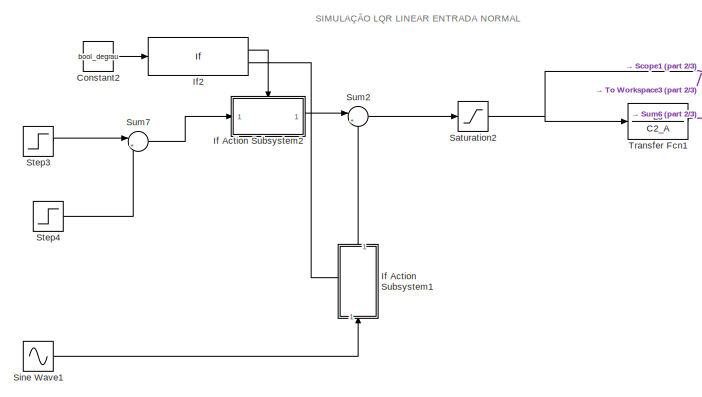
[diagram: root canvas - part 1/3, top left region]
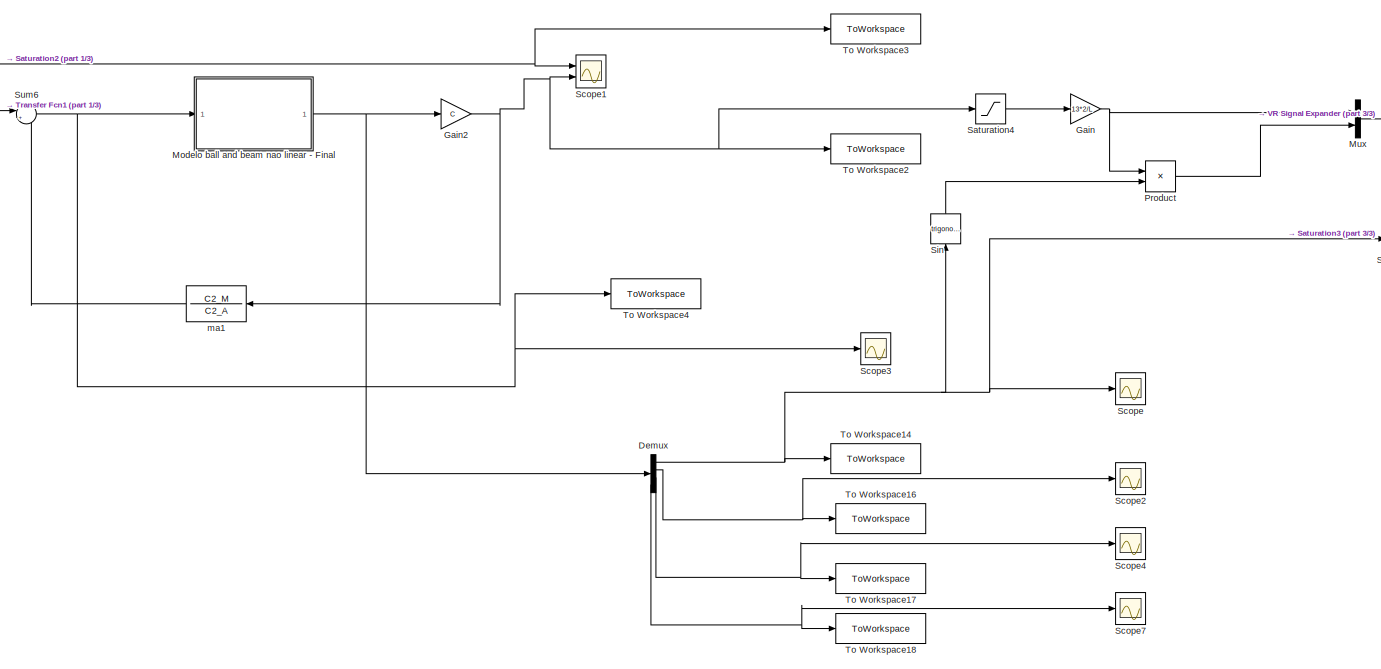
[diagram: root canvas - part 2/3, center side, full height]
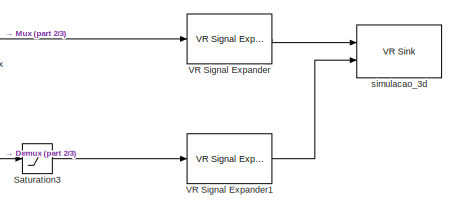
[diagram: root canvas - part 3/3, top right region]
MODEL slx_88c4b40026f5
KIND model
CONFIG AbsTol = auto
CONFIG EnableMultiTasking = off
CONFIG FixedStep = auto
CONFIG MaxStep = auto
CONFIG MinStep = auto
CONFIG RelTol = 1e-3
CONFIG SampleTimeConstraint = Unconstrained
CONFIG SolverName = VariableStepAuto
CONFIG StartTime = 0.0
CONFIG StopTime = 100
BLOCK [Constant] Constant2
  Value = bool_degrau
BLOCK [Demux] Demux
  Ports = [1, 4]
BLOCK [Gain] Gain
  Gain = 13*2/L
BLOCK [Gain] Gain2
  Gain = C
  Multiplication = Matrix(K*u)
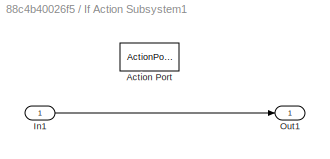
BLOCK [SubSystem] If Action Subsystem1
  NameLocation = right
  Ports = [1, 1, 0, 0, 0, 0, 0, 1]
  RequestExecContextInheritance = off
  TreatAsAtomicUnit = on
BLOCK [ActionPort] If Action Subsystem1/Action Port
  ActionPortLabel = else
BLOCK [Inport] If Action Subsystem1/In1
BLOCK [Outport] If Action Subsystem1/Out1
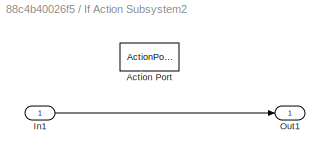
BLOCK [SubSystem] If Action Subsystem2
  Ports = [1, 1, 0, 0, 0, 0, 0, 1]
  RequestExecContextInheritance = off
  TreatAsAtomicUnit = on
BLOCK [ActionPort] If Action Subsystem2/Action Port
  ActionPortLabel = if(u1 == 1)
BLOCK [Inport] If Action Subsystem2/In1
BLOCK [Outport] If Action Subsystem2/Out1
BLOCK [If] If2
  IfExpression = u1 == 1
  Ports = [1, 2]
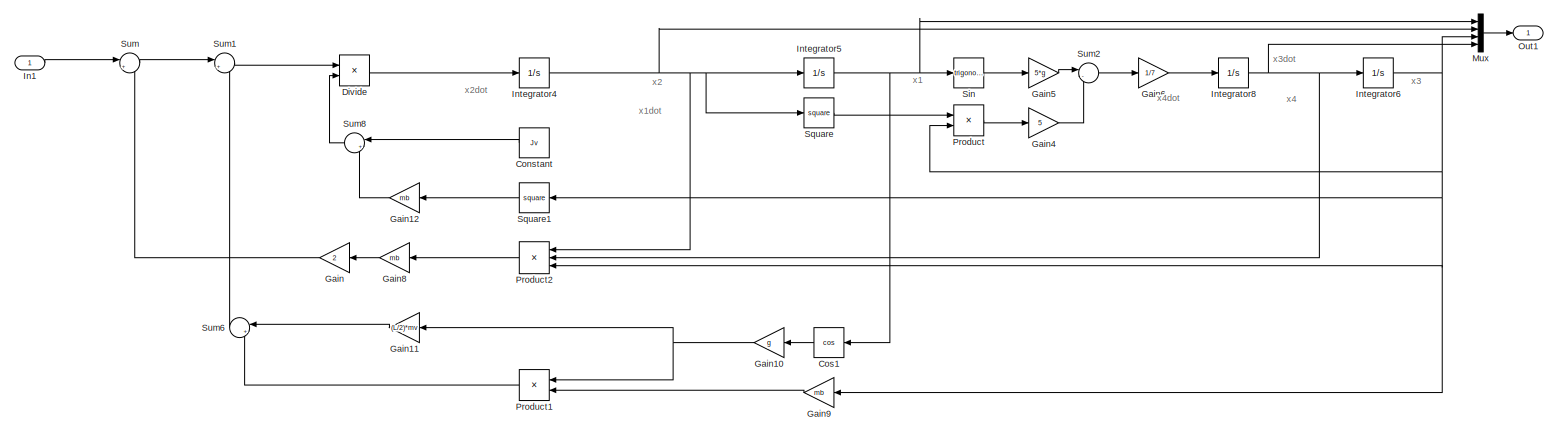
[diagram: Modelo ball and beam nao linear - Final - part 1/1, most of the canvas]
BLOCK [SubSystem] Modelo ball and beam nao linear - Final
  Ports = [1, 1]
  RequestExecContextInheritance = off
BLOCK [Constant] Modelo ball and beam nao linear - Final/Constant
  NameLocation = top
  Value = Jv
BLOCK [Trigonometry] Modelo ball and beam nao linear - Final/Cos1
  NameLocation = top
  Operator = cos
  Ports = [1, 1]
BLOCK [Product] Modelo ball and beam nao linear - Final/Divide
  Inputs = */
  Ports = [2, 1]
BLOCK [Gain] Modelo ball and beam nao linear - Final/Gain
  Gain = 2
  NameLocation = top
BLOCK [Gain] Modelo ball and beam nao linear - Final/Gain10
  Gain = g
  NameLocation = top
BLOCK [Gain] Modelo ball and beam nao linear - Final/Gain11
  Gain = (L/2)*mv
  NameLocation = top
BLOCK [Gain] Modelo ball and beam nao linear - Final/Gain12
  Gain = mb
  NameLocation = top
BLOCK [Gain] Modelo ball and beam nao linear - Final/Gain4
  Gain = 5
BLOCK [Gain] Modelo ball and beam nao linear - Final/Gain5
  Gain = 5*g
BLOCK [Gain] Modelo ball and beam nao linear - Final/Gain6
  Gain = 1/7
BLOCK [Gain] Modelo ball and beam nao linear - Final/Gain8
  Gain = mb
  NameLocation = top
BLOCK [Gain] Modelo ball and beam nao linear - Final/Gain9
  Gain = mb
  NameLocation = top
BLOCK [Inport] Modelo ball and beam nao linear - Final/In1
BLOCK [Integrator] Modelo ball and beam nao linear - Final/Integrator4
  Ports = [1, 1]
BLOCK [Integrator] Modelo ball and beam nao linear - Final/Integrator5
  Ports = [1, 1]
BLOCK [Integrator] Modelo ball and beam nao linear - Final/Integrator6
  Ports = [1, 1]
BLOCK [Integrator] Modelo ball and beam nao linear - Final/Integrator8
  Ports = [1, 1]
BLOCK [Mux] Modelo ball and beam nao linear - Final/Mux
  DisplayOption = bar
  Ports = [4, 1]
BLOCK [Outport] Modelo ball and beam nao linear - Final/Out1
BLOCK [Product] Modelo ball and beam nao linear - Final/Product
  Ports = [2, 1]
BLOCK [Product] Modelo ball and beam nao linear - Final/Product1
  NameLocation = top
  Ports = [2, 1]
BLOCK [Product] Modelo ball and beam nao linear - Final/Product2
  Inputs = 3
  NameLocation = top
  Ports = [3, 1]
BLOCK [Trigonometry] Modelo ball and beam nao linear - Final/Sin
  Ports = [1, 1]
BLOCK [Math] Modelo ball and beam nao linear - Final/Square
  Operator = square
  Ports = [1, 1]
BLOCK [Math] Modelo ball and beam nao linear - Final/Square1
  NameLocation = top
  Operator = square
  Ports = [1, 1]
BLOCK [Sum] Modelo ball and beam nao linear - Final/Sum
  Inputs = |+-
  Ports = [2, 1]
BLOCK [Sum] Modelo ball and beam nao linear - Final/Sum1
  Inputs = |+-
  Ports = [2, 1]
BLOCK [Sum] Modelo ball and beam nao linear - Final/Sum2
  Inputs = |-+
  NameLocation = top
  Ports = [2, 1]
BLOCK [Sum] Modelo ball and beam nao linear - Final/Sum6
  Inputs = |++
  NameLocation = top
  Ports = [2, 1]
BLOCK [Sum] Modelo ball and beam nao linear - Final/Sum8
  Inputs = |++
  NameLocation = top
  Ports = [2, 1]
BLOCK [Mux] Mux
  DisplayOption = bar
  Inputs = 2
  Ports = [2, 1]
BLOCK [Product] Product
  Ports = [2, 1]
BLOCK [Saturate] Saturation2
  LowerLimit = -L/2
  UpperLimit = L/2
BLOCK [Saturate] Saturation3
  LowerLimit = -0.1
  UpperLimit = 0.1
BLOCK [Saturate] Saturation4
  LowerLimit = 0
  UpperLimit = L/2
BLOCK [Scope] Scope
  Floating = off
  NumInputPorts = 1
  Ports = [1]
  ScopeSpecificationString = Simulink.scopes.TimeScopeBlockCfg('CurrentConfiguration', extmgr.ConfigurationSet(extmgr.Configuration('Core','General UI',true),extmgr.Configuration('Core','Source UI',true),extmgr.Configuration('Sources','WiredSimulink',true,'DataLoggingVariableName','ScopeData1'),extmgr.Configuration('Visuals','Time Domain',true,'SerializedDisplays',{struct('MinYLimReal','-7.97498','MaxYLimReal','11.73595','YLa...<+1399ch>
BLOCK [Scope] Scope1
  Floating = off
  NumInputPorts = 2
  Ports = [2]
  ScopeSpecificationString = Simulink.scopes.TimeScopeBlockCfg('CurrentConfiguration', extmgr.ConfigurationSet(extmgr.Configuration('Core','General UI',true,'FigureColor',[1 1 1]),extmgr.Configuration('Core','Source UI',true),extmgr.Configuration('Sources','WiredSimulink',true,'DataLoggingVariableName','ScopeData2'),extmgr.Configuration('Visuals','Time Domain',true,'SerializedDisplays',{struct('MinYLimReal','-9336579.2853','M...<+1861ch>
BLOCK [Scope] Scope2
  Floating = off
  NumInputPorts = 1
  Ports = [1]
  ScopeSpecificationString = Simulink.scopes.TimeScopeBlockCfg('CurrentConfiguration', extmgr.ConfigurationSet(extmgr.Configuration('Core','General UI',true),extmgr.Configuration('Core','Source UI',true),extmgr.Configuration('Sources','WiredSimulink',true,'DataLoggingVariableName','ScopeData3'),extmgr.Configuration('Visuals','Time Domain',true,'SerializedDisplays',{struct('MinYLimReal','-343.37819','MaxYLimReal','357.58827','...<+1380ch>
BLOCK [Scope] Scope3
  Floating = off
  NumInputPorts = 1
  Ports = [1]
  ScopeSpecificationString = Simulink.scopes.TimeScopeBlockCfg('CurrentConfiguration', extmgr.ConfigurationSet(extmgr.Configuration('Core','General UI',true),extmgr.Configuration('Core','Source UI',true),extmgr.Configuration('Sources','WiredSimulink',true,'DataLoggingVariableName','ScopeData6'),extmgr.Configuration('Visuals','Time Domain',true,'SerializedDisplays',{struct('MinYLimReal','-2.72608','MaxYLimReal','2.77862','YLab...<+1392ch>
BLOCK [Scope] Scope4
  Floating = off
  NumInputPorts = 1
  Ports = [1]
  ScopeSpecificationString = Simulink.scopes.TimeScopeBlockCfg('CurrentConfiguration', extmgr.ConfigurationSet(extmgr.Configuration('Core','General UI',true),extmgr.Configuration('Core','Source UI',true),extmgr.Configuration('Sources','WiredSimulink',true,'DataLoggingVariableName','ScopeData7'),extmgr.Configuration('Visuals','Time Domain',true,'SerializedDisplays',{struct('MinYLimReal','-0.27571','MaxYLimReal','0.27153','YLab...<+1366ch>
BLOCK [Scope] Scope7
  Floating = off
  NumInputPorts = 1
  Ports = [1]
  ScopeSpecificationString = Simulink.scopes.TimeScopeBlockCfg('CurrentConfiguration', extmgr.ConfigurationSet(extmgr.Configuration('Core','General UI',true),extmgr.Configuration('Core','Source UI',true),extmgr.Configuration('Sources','WiredSimulink',true),extmgr.Configuration('Visuals','Time Domain',true,'SerializedDisplays',{struct('MinYLimReal','-4.60207','MaxYLimReal','2.66412','YLabelReal','','MinYLimMag','0.00000','MaxY...<+1327ch>
BLOCK [Trigonometry] Sin
  NameLocation = right
  Ports = [1, 1]
BLOCK [Sin] Sine Wave1
  Amplitude = amplitude_entrada
  Frequency = 0.1
  Ports = [0, 1]
  SampleTime = 0
BLOCK [Step] Step3
  After = amplitude_entrada
  SampleTime = 0
BLOCK [Step] Step4
  After = -2*amplitude_entrada
  SampleTime = 0
  Time = 100
BLOCK [Sum] Sum2
  Inputs = |++
  Ports = [2, 1]
BLOCK [Sum] Sum6
  Inputs = |+-
  Ports = [2, 1]
BLOCK [Sum] Sum7
  Inputs = |++
  Ports = [2, 1]
BLOCK [ToWorkspace] To Workspace14
  FixptAsFi = on
  MaxDataPoints = inf
  Ports = [1]
  SampleTime = -1
  SaveFormat = Timeseries
  VariableName = output_estados_1
BLOCK [ToWorkspace] To Workspace16
  FixptAsFi = on
  MaxDataPoints = inf
  Ports = [1]
  SampleTime = -1
  SaveFormat = Timeseries
  VariableName = output_estados_2
BLOCK [ToWorkspace] To Workspace17
  FixptAsFi = on
  MaxDataPoints = inf
  Ports = [1]
  SampleTime = -1
  SaveFormat = Timeseries
  VariableName = output_estados_3
BLOCK [ToWorkspace] To Workspace18
  FixptAsFi = on
  MaxDataPoints = inf
  Ports = [1]
  SampleTime = -1
  SaveFormat = Timeseries
  VariableName = output_estados_4
BLOCK [ToWorkspace] To Workspace2
  FixptAsFi = on
  MaxDataPoints = inf
  Ports = [1]
  SampleTime = -1
  SaveFormat = Timeseries
  VariableName = y_output
BLOCK [ToWorkspace] To Workspace3
  FixptAsFi = on
  MaxDataPoints = inf
  Ports = [1]
  SampleTime = -1
  SaveFormat = Timeseries
  VariableName = u_output
BLOCK [ToWorkspace] To Workspace4
  FixptAsFi = on
  MaxDataPoints = inf
  Ports = [1]
  SampleTime = -1
  SaveFormat = Timeseries
  VariableName = acao_controle
BLOCK [TransferFcn] Transfer Fcn1
  Denominator = C2_A
  Numerator = Ls
BLOCK [Reference] VR Signal Expander  REF=vrlib/VR Signal Expander
  Ports = [1, 1]
  SourceBlock = vrlib/VR Signal Expander
  SourceProductBaseCode = SL
  SourceType = VR Signal Expander
BLOCK [Reference] VR Signal Expander1  REF=vrlib/VR Signal Expander
  Ports = [1, 1]
  SourceBlock = vrlib/VR Signal Expander
  SourceProductBaseCode = SL
  SourceType = VR Signal Expander
BLOCK [TransferFcn] ma1
  Denominator = C2_A
  NameLocation = top
  Numerator = C2_M
BLOCK [Reference] simulacao_3d  REF=vrlib/VR Sink
  InstantiateOnLoad = on
  Ports = [2]
  SourceBlock = vrlib/VR Sink
  SourceProductBaseCode = SL
  SourceType = Virtual Reality Sink
ANNOTATION (root): SIMULAÇÃO LQR LINEAR ENTRADA NORMAL
ANNOTATION Modelo ball and beam nao linear - Final: x1
ANNOTATION Modelo ball and beam nao linear - Final: x1dot
ANNOTATION Modelo ball and beam nao linear - Final: x2
ANNOTATION Modelo ball and beam nao linear - Final: x2dot
ANNOTATION Modelo ball and beam nao linear - Final: x3
ANNOTATION Modelo ball and beam nao linear - Final: x3dot
ANNOTATION Modelo ball and beam nao linear - Final: x4
ANNOTATION Modelo ball and beam nao linear - Final: x4dot
LINE Constant2:1 -> If2:1
NET Demux:1 -> Saturation3:1, Scope:1, Sin:1, To Workspace14:1
NET Demux:2 -> Scope2:1, To Workspace16:1
NET Demux:3 -> Scope4:1, To Workspace17:1
NET Demux:4 -> Scope7:1, To Workspace18:1
NET Gain2:1 -> Saturation4:1, Scope1:2, To Workspace2:1, ma1:1
NET Gain:1 -> Mux:1, Product:1
LINE If Action Subsystem1/In1:1 -> If Action Subsystem1/Out1:1
LINE If Action Subsystem1:1 -> Sum2:2
LINE If Action Subsystem2/In1:1 -> If Action Subsystem2/Out1:1
LINE If Action Subsystem2:1 -> Sum2:1
LINE If2:1 -> If Action Subsystem2:ifaction
LINE If2:2 -> If Action Subsystem1:ifaction
LINE Modelo ball and beam nao linear - Final/Constant:1 -> Modelo ball and beam nao linear - Final/Sum8:1
LINE Modelo ball and beam nao linear - Final/Cos1:1 -> Modelo ball and beam nao linear - Final/Gain10:1
LINE Modelo ball and beam nao linear - Final/Divide:1 -> Modelo ball and beam nao linear - Final/Integrator4:1
NET Modelo ball and beam nao linear - Final/Gain10:1 -> Modelo ball and beam nao linear - Final/Gain11:1, Modelo ball and beam nao linear - Final/Product1:1
LINE Modelo ball and beam nao linear - Final/Gain11:1 -> Modelo ball and beam nao linear - Final/Sum6:1
LINE Modelo ball and beam nao linear - Final/Gain12:1 -> Modelo ball and beam nao linear - Final/Sum8:2
LINE Modelo ball and beam nao linear - Final/Gain4:1 -> Modelo ball and beam nao linear - Final/Sum2:2
LINE Modelo ball and beam nao linear - Final/Gain5:1 -> Modelo ball and beam nao linear - Final/Sum2:1
LINE Modelo ball and beam nao linear - Final/Gain6:1 -> Modelo ball and beam nao linear - Final/Integrator8:1
LINE Modelo ball and beam nao linear - Final/Gain8:1 -> Modelo ball and beam nao linear - Final/Gain:1
LINE Modelo ball and beam nao linear - Final/Gain9:1 -> Modelo ball and beam nao linear - Final/Product1:2
LINE Modelo ball and beam nao linear - Final/Gain:1 -> Modelo ball and beam nao linear - Final/Sum:2
LINE Modelo ball and beam nao linear - Final/In1:1 -> Modelo ball and beam nao linear - Final/Sum:1
NET Modelo ball and beam nao linear - Final/Integrator4:1 -> Modelo ball and beam nao linear - Final/Integrator5:1, Modelo ball and beam nao linear - Final/Mux:2, Modelo ball and beam nao linear - Final/Product2:1, Modelo ball and beam nao linear - Final/Square:1
NET Modelo ball and beam nao linear - Final/Integrator5:1 -> Modelo ball and beam nao linear - Final/Cos1:1, Modelo ball and beam nao linear - Final/Mux:1, Modelo ball and beam nao linear - Final/Sin:1
NET Modelo ball and beam nao linear - Final/Integrator6:1 -> Modelo ball and beam nao linear - Final/Gain9:1, Modelo ball and beam nao linear - Final/Mux:3, Modelo ball and beam nao linear - Final/Product2:3, Modelo ball and beam nao linear - Final/Product:2, Modelo ball and beam nao linear - Final/Square1:1
NET Modelo ball and beam nao linear - Final/Integrator8:1 -> Modelo ball and beam nao linear - Final/Integrator6:1, Modelo ball and beam nao linear - Final/Mux:4, Modelo ball and beam nao linear - Final/Product2:2
LINE Modelo ball and beam nao linear - Final/Mux:1 -> Modelo ball and beam nao linear - Final/Out1:1
LINE Modelo ball and beam nao linear - Final/Product1:1 -> Modelo ball and beam nao linear - Final/Sum6:2
LINE Modelo ball and beam nao linear - Final/Product2:1 -> Modelo ball and beam nao linear - Final/Gain8:1
LINE Modelo ball and beam nao linear - Final/Product:1 -> Modelo ball and beam nao linear - Final/Gain4:1
LINE Modelo ball and beam nao linear - Final/Sin:1 -> Modelo ball and beam nao linear - Final/Gain5:1
LINE Modelo ball and beam nao linear - Final/Square1:1 -> Modelo ball and beam nao linear - Final/Gain12:1
LINE Modelo ball and beam nao linear - Final/Square:1 -> Modelo ball and beam nao linear - Final/Product:1
LINE Modelo ball and beam nao linear - Final/Sum1:1 -> Modelo ball and beam nao linear - Final/Divide:1
LINE Modelo ball and beam nao linear - Final/Sum2:1 -> Modelo ball and beam nao linear - Final/Gain6:1
LINE Modelo ball and beam nao linear - Final/Sum6:1 -> Modelo ball and beam nao linear - Final/Sum1:2
LINE Modelo ball and beam nao linear - Final/Sum8:1 -> Modelo ball and beam nao linear - Final/Divide:2
LINE Modelo ball and beam nao linear - Final/Sum:1 -> Modelo ball and beam nao linear - Final/Sum1:1
NET Modelo ball and beam nao linear - Final:1 -> Demux:1, Gain2:1
LINE Mux:1 -> VR Signal Expander:1
LINE Product:1 -> Mux:2
NET Saturation2:1 -> Scope1:1, To Workspace3:1, Transfer Fcn1:1
LINE Saturation3:1 -> VR Signal Expander1:1
LINE Saturation4:1 -> Gain:1
LINE Sin:1 -> Product:2
LINE Sine Wave1:1 -> If Action Subsystem1:1
LINE Step3:1 -> Sum7:1
LINE Step4:1 -> Sum7:2
LINE Sum2:1 -> Saturation2:1
NET Sum6:1 -> Modelo ball and beam nao linear - Final:1, Scope3:1, To Workspace4:1
LINE Sum7:1 -> If Action Subsystem2:1
LINE Transfer Fcn1:1 -> Sum6:1
LINE VR Signal Expander1:1 -> simulacao_3d:2
LINE VR Signal Expander:1 -> simulacao_3d:1
LINE ma1:1 -> Sum6:2
note: NET lines group one-source signal fan-out (src -> all destinations, sorted); 1:1 wires keep LINE
